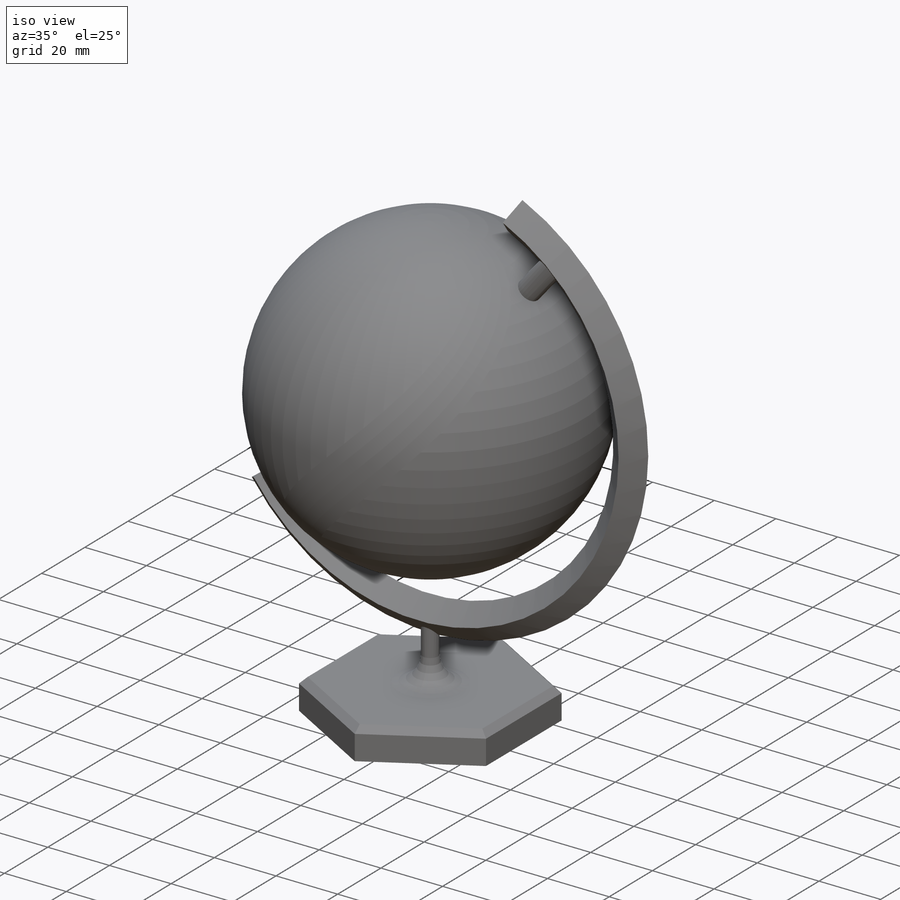
[diagram: iso view]
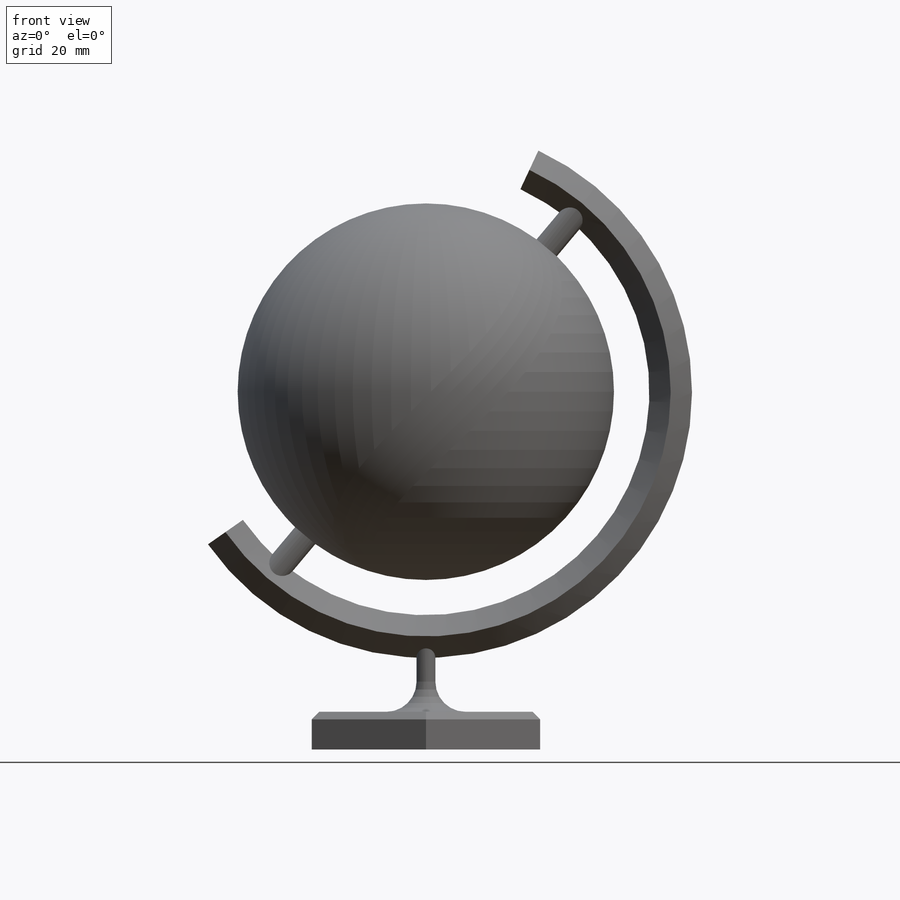
[diagram: front view]
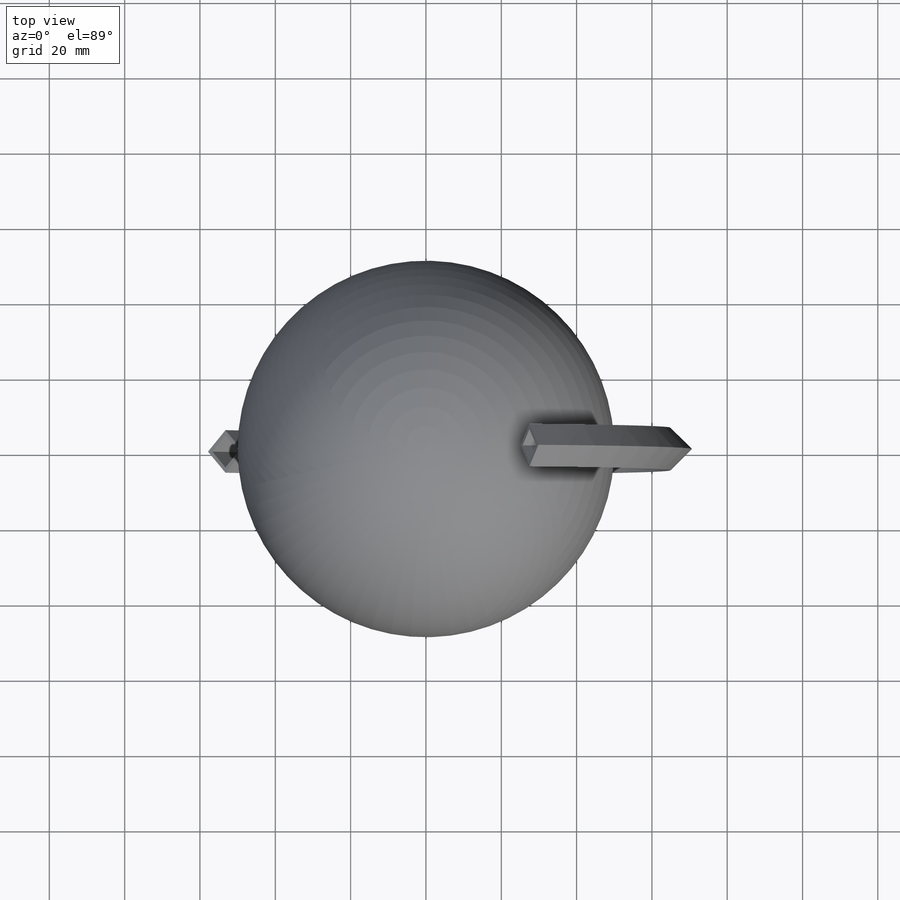
[diagram: top view]
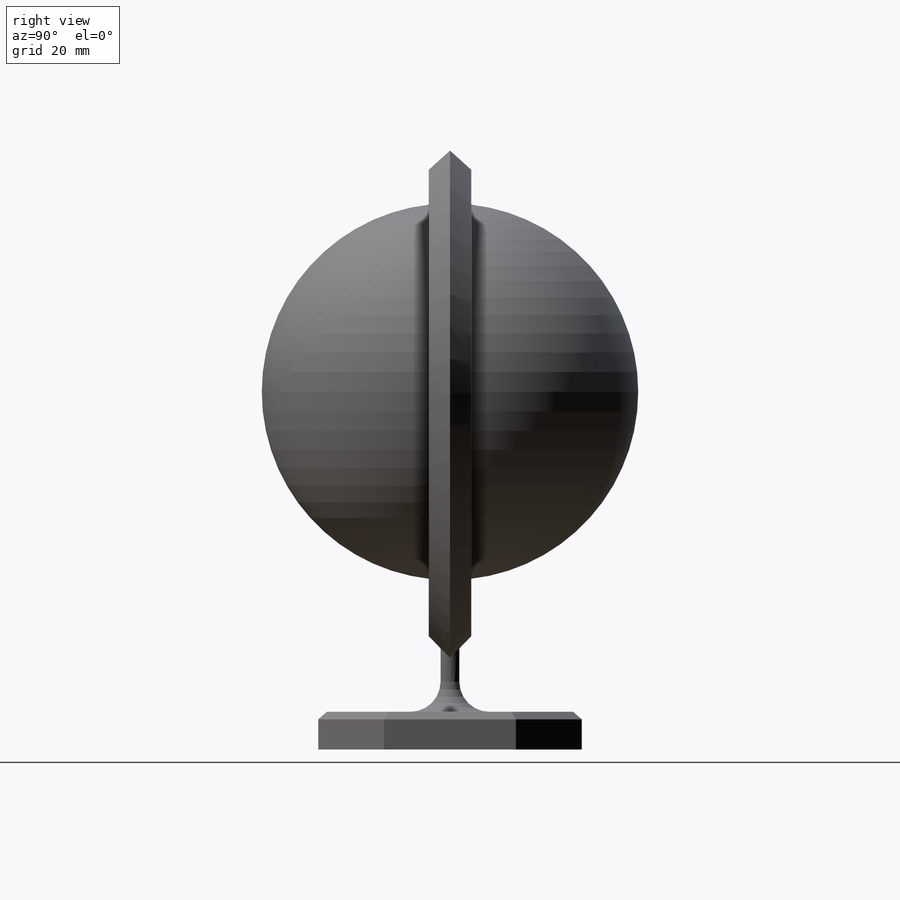
[diagram: right view]
SOLIDWORKS PART (.sldprt)
format: sldprt  version: not decoded by parser v0  size: 290,304 bytes
history: native  units: mm
features: sketch x5, extrude x3, material x1, shell x1, revolve x1, plane x1, fillet x1, chamfer x1 (+13 scaffold rows collapsed)
feature tree (27):
  scaffold x13  (default folders/planes/origin — collapsed)
  material  "Material <not specified>"
  sketch  "Sketch1"  dims[D1=70.0mm]
  extrude  "Boss-Extrude1"  Depth=10mm
  shell  "Shell1"  Thickness=2mm
  sketch  "Sketch2"  dims[D1=50.0mm D2=95.0mm]
  revolve  "Revolve1"  Angle=360deg
  sketch  "Sketch4"  dims[c1.D1=8.0mm c1.D2=65.0mm c2.D1=55.0deg c2.D2=155.0deg c2.D3=1.0mm c2.D4=10.0mm c2.D7=0.0mm]
  plane  "Plane1"
  sketch  "Sketch5"  dims[D1=7.0mm]
  extrude  "Boss-Extrude2"  Depth=10mm
  sketch  "Sketch6"  dims[D1=5.0mm]
  extrude  "Boss-Extrude3"  [1 undecoded]
  fillet  "Fillet1"  Radius=8mm
  chamfer  "Chamfer1"  Distance=2mm Angle=45deg
decode coverage: 11 of 12 modeling features carry decoded parameters
note: 1 parameter value undecoded
note: suppression state not decoded; provenance and decode notes live in map.json
